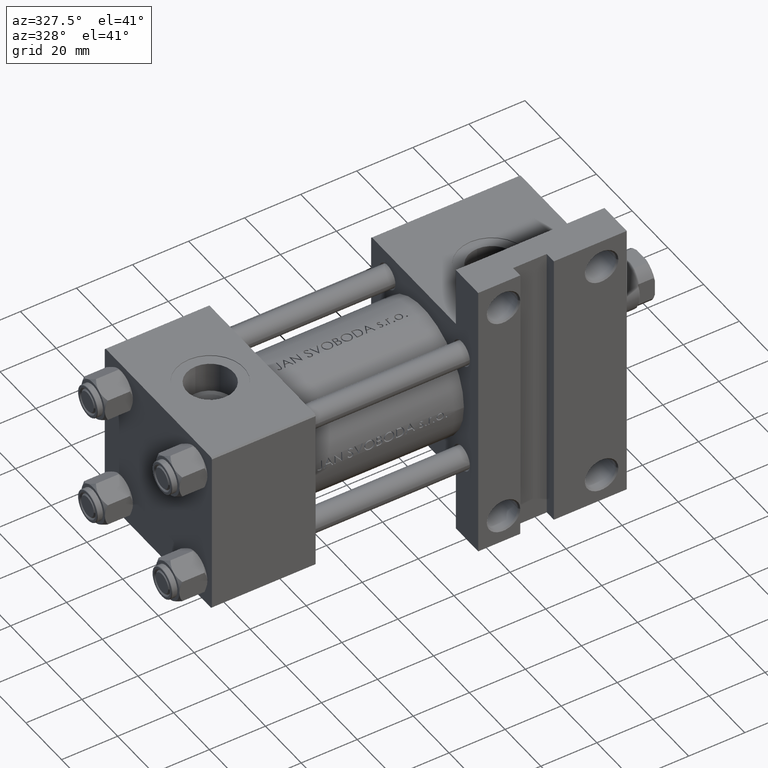
[diagram: clean part render]
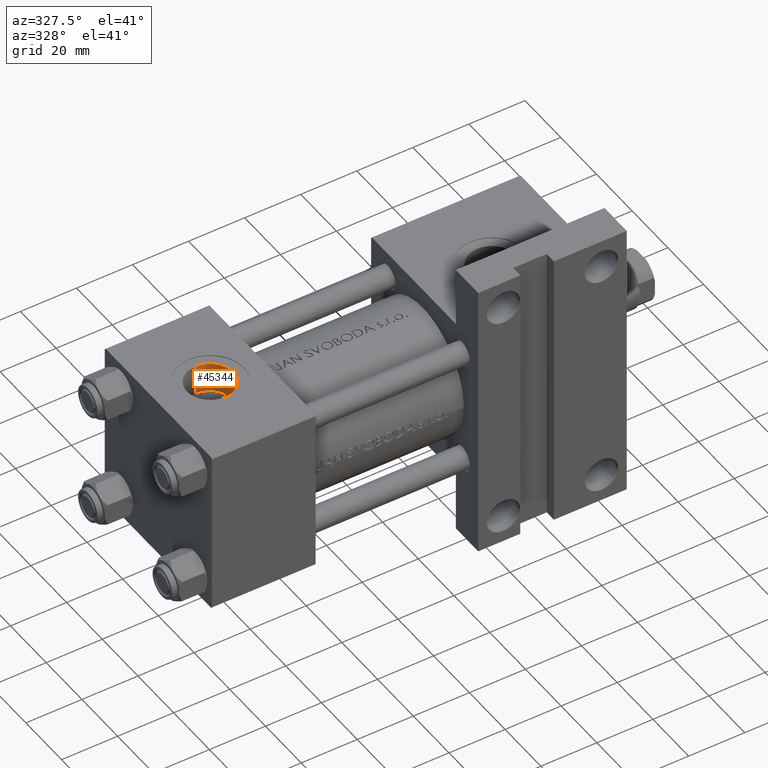
[diagram: same view with one face highlighted and labeled with its STEP entity id]
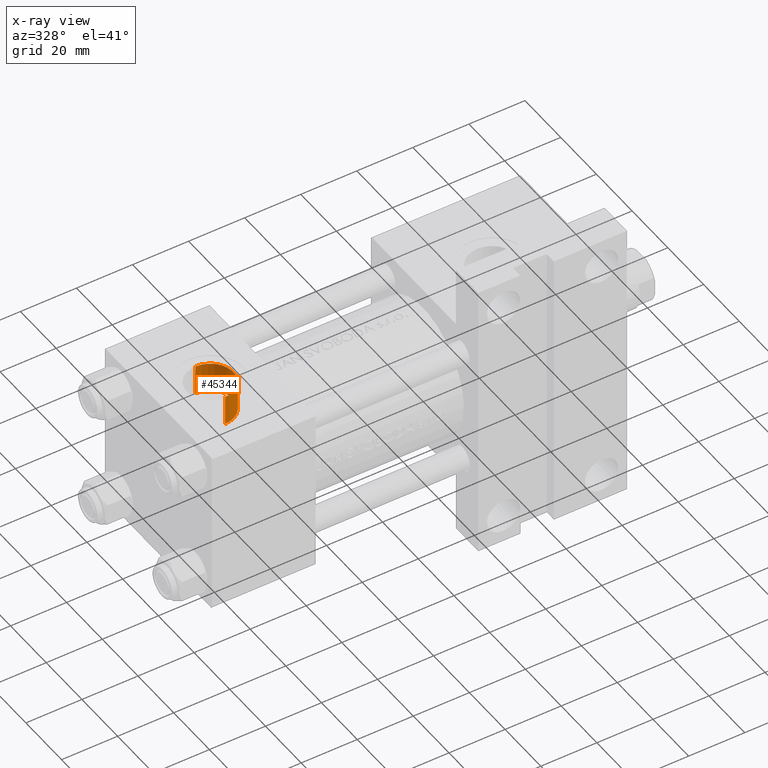
[diagram: x-ray of the same camera — body ghosted, the highlighted face saturated]
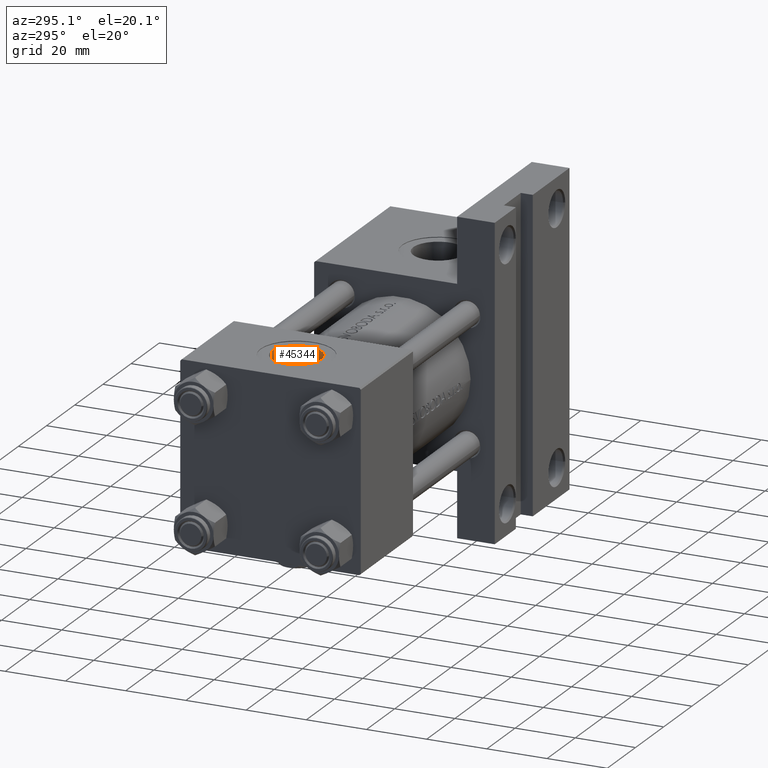
[diagram: same view with one face highlighted and labeled with its STEP entity id]
A machine part, auxiliary view. The second image highlights one B-rep face of the part: STEP entity #45344.
The next image is the same camera in x-ray: the body ghosted, the highlighted face saturated — about 0% of this face is hidden behind the body in this view.
A second angle (auxiliary view) of the same face is appended — the face is thin or edge-on in the first view.
In plain terms, the highlighted cylindrical surface (edge-blend (fillet) strip) has radius 8.33 mm, axis along (-0, -0, 1).
Its self-contained STEP definition (entity closure, byte-faithful):
#112 = DIRECTION ( 'NONE',  ( 0.000000000000000000, -1.000000000000000000, -8.673617379884036705E-17 ) ) ;
#1879 = EDGE_CURVE ( 'NONE', #26802, #33170, #22082, .T. ) ;
#2995 = VECTOR ( 'NONE', #41709, 1000.000000000000000 ) ;
#4839 = CARTESIAN_POINT ( 'NONE',  ( 18.50000000000000000, -29.80000000000000071, 8.330000000000001847 ) ) ;
#5903 = VERTEX_POINT ( 'NONE', #4839 ) ;
#8470 = EDGE_CURVE ( 'NONE', #14084, #5903, #49046, .T. ) ;
#10958 = ORIENTED_EDGE ( 'NONE', *, *, #40804, .T. ) ;
#11618 = ORIENTED_EDGE ( 'NONE', *, *, #1879, .T. ) ;
#12350 = AXIS2_PLACEMENT_3D ( 'NONE', #31508, #112, #15697 ) ;
#13254 = CIRCLE ( 'NONE', #39340, 8.330000000000001847 ) ;
#13900 = DIRECTION ( 'NONE',  ( 0.000000000000000000, -1.000000000000000000, -8.673617379884036705E-17 ) ) ;
#14084 = VERTEX_POINT ( 'NONE', #25231 ) ;
#14245 = EDGE_CURVE ( 'NONE', #26802, #14084, #13254, .T. ) ;
#15697 = DIRECTION ( 'NONE',  ( 0.000000000000000000, 0.000000000000000000, -1.000000000000000000 ) ) ;
#18024 = EDGE_LOOP ( 'NONE', ( #28326, #44642, #11618, #10958 ) ) ;
#22082 = LINE ( 'NONE', #49593, #2995 ) ;
#25089 = CYLINDRICAL_SURFACE ( 'NONE', #25603, 8.330000000000001847 ) ;
#25231 = CARTESIAN_POINT ( 'NONE',  ( 18.50000000000000000, -19.09999999999999787, 8.330000000000003624 ) ) ;
#25603 = AXIS2_PLACEMENT_3D ( 'NONE', #48501, #29139, #44690 ) ;
#25882 = CARTESIAN_POINT ( 'NONE',  ( 18.50000000000000000, -19.09999999999999787, 8.330000000000003624 ) ) ;
#26802 = VERTEX_POINT ( 'NONE', #26930 ) ;
#26930 = CARTESIAN_POINT ( 'NONE',  ( 18.50000000000000000, -19.09999999999999787, -8.330000000000000071 ) ) ;
#28326 = ORIENTED_EDGE ( 'NONE', *, *, #8470, .F. ) ;
#29139 = DIRECTION ( 'NONE',  ( -0.000000000000000000, -1.000000000000000000, -8.673617379884036705E-17 ) ) ;
#31508 = CARTESIAN_POINT ( 'NONE',  ( 18.50000000000000000, -29.80000000000000071, 1.734723475976808635E-17 ) ) ;
#31913 = CIRCLE ( 'NONE', #12350, 8.330000000000001847 ) ;
#33170 = VERTEX_POINT ( 'NONE', #48484 ) ;
#37138 = DIRECTION ( 'NONE',  ( 0.000000000000000000, 0.000000000000000000, -1.000000000000000000 ) ) ;
#39340 = AXIS2_PLACEMENT_3D ( 'NONE', #47089, #13900, #37138 ) ;
#40014 = VECTOR ( 'NONE', #40912, 1000.000000000000000 ) ;
#40804 = EDGE_CURVE ( 'NONE', #33170, #5903, #31913, .T. ) ;
#40912 = DIRECTION ( 'NONE',  ( -0.000000000000000000, -1.000000000000000000, -8.673617379884036705E-17 ) ) ;
#41709 = DIRECTION ( 'NONE',  ( -0.000000000000000000, -1.000000000000000000, -8.673617379884036705E-17 ) ) ;
#44642 = ORIENTED_EDGE ( 'NONE', *, *, #14245, .F. ) ;
#44690 = DIRECTION ( 'NONE',  ( 0.000000000000000000, 0.000000000000000000, -1.000000000000000000 ) ) ;
#45344 = ADVANCED_FACE ( 'NONE', ( #48758 ), #25089, .F. ) ;
#47089 = CARTESIAN_POINT ( 'NONE',  ( 18.50000000000000000, -19.09999999999999787, 9.454242944073598665E-16 ) ) ;
#48484 = CARTESIAN_POINT ( 'NONE',  ( 18.50000000000000000, -29.80000000000000071, -8.330000000000001847 ) ) ;
#48501 = CARTESIAN_POINT ( 'NONE',  ( 18.50000000000000000, -19.09999999999999787, 9.454242944073598665E-16 ) ) ;
#48758 = FACE_OUTER_BOUND ( 'NONE', #18024, .T. ) ;
#49046 = LINE ( 'NONE', #25882, #40014 ) ;
#49593 = CARTESIAN_POINT ( 'NONE',  ( 18.50000000000000000, -19.09999999999999787, -8.330000000000000071 ) ) ;